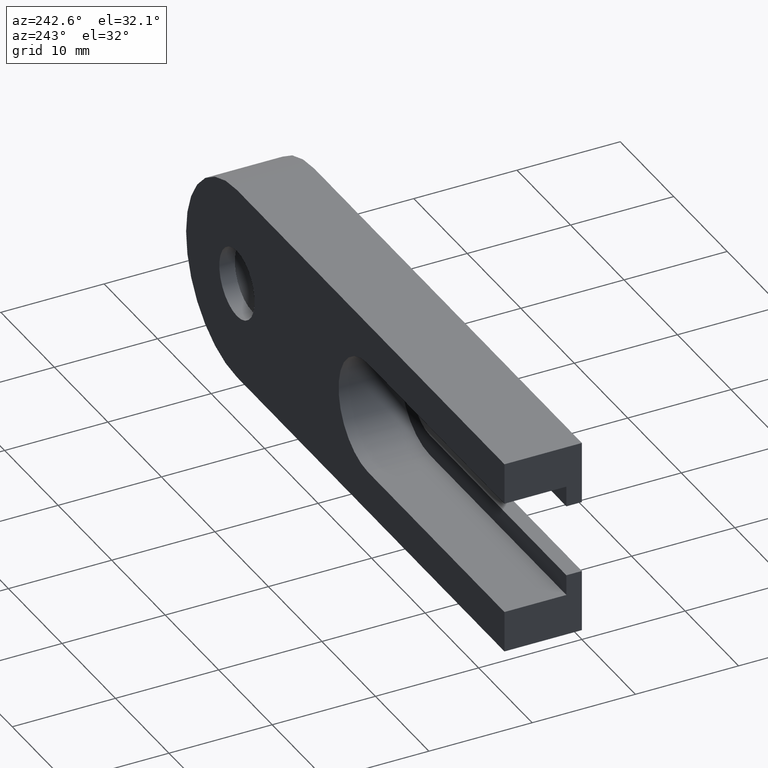
[diagram: clean part render]
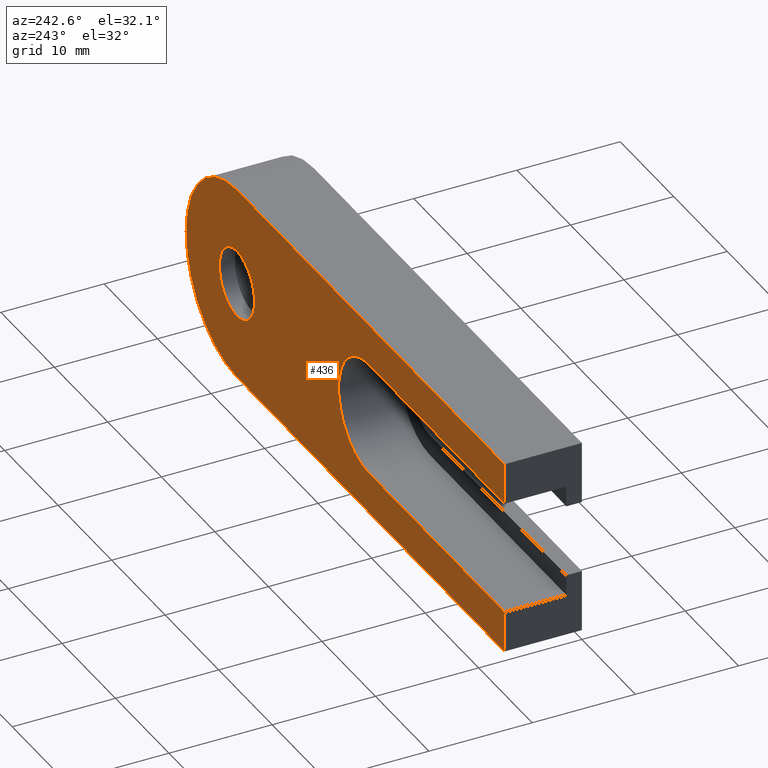
[diagram: same view with one face highlighted and labeled with its STEP entity id]
A machine part, auxiliary view. The second image highlights one B-rep face of the part: STEP entity #436.
In plain terms, the highlighted planar face has unit normal (0, 1, 0).
Its self-contained STEP definition (entity closure, byte-faithful):
#11 = DIRECTION ( 'NONE',  ( 0.0000000000000000000, -0.0000000000000000000, 1.000000000000000000 ) ) ;
#35 = CARTESIAN_POINT ( 'NONE',  ( 0.0000000000000000000, 7.500000000000000000, -9.500000000000000000 ) ) ;
#39 = CARTESIAN_POINT ( 'NONE',  ( -49.99999999999999300, 7.500000000000000000, -9.500000000000000000 ) ) ;
#44 = ORIENTED_EDGE ( 'NONE', *, *, #482, .T. ) ;
#46 = AXIS2_PLACEMENT_3D ( 'NONE', #83, #447, #654 ) ;
#48 = LINE ( 'NONE', #651, #589 ) ;
#57 = LINE ( 'NONE', #251, #547 ) ;
#67 = ORIENTED_EDGE ( 'NONE', *, *, #163, .F. ) ;
#71 = EDGE_CURVE ( 'NONE', #345, #138, #271, .T. ) ;
#82 = DIRECTION ( 'NONE',  ( 1.000000000000000000, 0.0000000000000000000, 0.0000000000000000000 ) ) ;
#83 = CARTESIAN_POINT ( 'NONE',  ( 0.0000000000000000000, 7.499999999999999100, 0.0000000000000000000 ) ) ;
#105 = CARTESIAN_POINT ( 'NONE',  ( 0.0000000000000000000, 7.500000000000000000, 0.0000000000000000000 ) ) ;
#108 = CIRCLE ( 'NONE', #343, 3.299999999999998500 ) ;
#115 = CARTESIAN_POINT ( 'NONE',  ( -49.99999999999999300, 7.500000000000000000, -9.500000000000000000 ) ) ;
#123 = CIRCLE ( 'NONE', #46, 3.299999999999998500 ) ;
#129 = AXIS2_PLACEMENT_3D ( 'NONE', #181, #586, #383 ) ;
#138 = VERTEX_POINT ( 'NONE', #332 ) ;
#148 = CARTESIAN_POINT ( 'NONE',  ( 4.041334437186264000E-016, 7.499999999999999100, 3.299999999999998500 ) ) ;
#160 = CARTESIAN_POINT ( 'NONE',  ( -24.49999999999999600, 7.500000000000000000, -5.500000000000000000 ) ) ;
#163 = EDGE_CURVE ( 'NONE', #469, #490, #540, .T. ) ;
#167 = DIRECTION ( 'NONE',  ( -0.0000000000000000000, -1.000000000000000000, -0.0000000000000000000 ) ) ;
#173 = ORIENTED_EDGE ( 'NONE', *, *, #525, .F. ) ;
#181 = CARTESIAN_POINT ( 'NONE',  ( -24.49999999999999600, 7.500000000000000000, 3.469446951953614200E-015 ) ) ;
#187 = VECTOR ( 'NONE', #541, 1000.000000000000000 ) ;
#188 = AXIS2_PLACEMENT_3D ( 'NONE', #247, #659, #448 ) ;
#191 = EDGE_CURVE ( 'NONE', #560, #619, #336, .T. ) ;
#194 = VECTOR ( 'NONE', #461, 1000.000000000000000 ) ;
#207 = ORIENTED_EDGE ( 'NONE', *, *, #587, .F. ) ;
#208 = CARTESIAN_POINT ( 'NONE',  ( -49.99999999999999300, 7.500000000000000000, 5.500000000000006200 ) ) ;
#210 = ORIENTED_EDGE ( 'NONE', *, *, #638, .T. ) ;
#221 = EDGE_LOOP ( 'NONE', ( #207, #67, #173, #283, #371, #496, #210, #408 ) ) ;
#230 = LINE ( 'NONE', #160, #293 ) ;
#247 = CARTESIAN_POINT ( 'NONE',  ( 0.0000000000000000000, 7.500000000000000000, 0.0000000000000000000 ) ) ;
#251 = CARTESIAN_POINT ( 'NONE',  ( -49.99999999999999300, 7.500000000000000000, 9.500000000000000000 ) ) ;
#257 = PLANE ( 'NONE',  #331 ) ;
#271 = LINE ( 'NONE', #115, #360 ) ;
#274 = VERTEX_POINT ( 'NONE', #148 ) ;
#283 = ORIENTED_EDGE ( 'NONE', *, *, #71, .T. ) ;
#293 = VECTOR ( 'NONE', #462, 1000.000000000000000 ) ;
#299 = CARTESIAN_POINT ( 'NONE',  ( -24.49999999999999600, 7.500000000000000000, -5.500000000000000000 ) ) ;
#305 = VERTEX_POINT ( 'NONE', #510 ) ;
#313 = DIRECTION ( 'NONE',  ( 0.0000000000000000000, 0.0000000000000000000, -1.000000000000000000 ) ) ;
#320 = DIRECTION ( 'NONE',  ( 0.0000000000000000000, 1.000000000000000000, 0.0000000000000000000 ) ) ;
#325 = CARTESIAN_POINT ( 'NONE',  ( 0.0000000000000000000, 7.499999999999999100, -3.299999999999998500 ) ) ;
#328 = DIRECTION ( 'NONE',  ( 0.0000000000000000000, 0.0000000000000000000, 1.000000000000000000 ) ) ;
#331 = AXIS2_PLACEMENT_3D ( 'NONE', #105, #320, #11 ) ;
#332 = CARTESIAN_POINT ( 'NONE',  ( -49.99999999999999300, 7.500000000000000000, 9.500000000000000000 ) ) ;
#336 = CIRCLE ( 'NONE', #188, 9.500000000000000000 ) ;
#342 = LINE ( 'NONE', #39, #187 ) ;
#343 = AXIS2_PLACEMENT_3D ( 'NONE', #368, #167, #313 ) ;
#345 = VERTEX_POINT ( 'NONE', #208 ) ;
#353 = DIRECTION ( 'NONE',  ( 1.000000000000000000, 0.0000000000000000000, 0.0000000000000000000 ) ) ;
#354 = EDGE_LOOP ( 'NONE', ( #44, #407 ) ) ;
#360 = VECTOR ( 'NONE', #328, 1000.000000000000000 ) ;
#368 = CARTESIAN_POINT ( 'NONE',  ( 0.0000000000000000000, 7.499999999999999100, 0.0000000000000000000 ) ) ;
#370 = EDGE_CURVE ( 'NONE', #274, #473, #108, .T. ) ;
#371 = ORIENTED_EDGE ( 'NONE', *, *, #527, .T. ) ;
#383 = DIRECTION ( 'NONE',  ( 0.0000000000000000000, 0.0000000000000000000, 1.000000000000000000 ) ) ;
#407 = ORIENTED_EDGE ( 'NONE', *, *, #370, .T. ) ;
#408 = ORIENTED_EDGE ( 'NONE', *, *, #493, .T. ) ;
#432 = VERTEX_POINT ( 'NONE', #464 ) ;
#436 = ADVANCED_FACE ( 'NONE', ( #471, #566 ), #257, .T. ) ;
#447 = DIRECTION ( 'NONE',  ( -0.0000000000000000000, -1.000000000000000000, -0.0000000000000000000 ) ) ;
#448 = DIRECTION ( 'NONE',  ( 0.0000000000000000000, 0.0000000000000000000, 1.000000000000000000 ) ) ;
#452 = CARTESIAN_POINT ( 'NONE',  ( 0.0000000000000000000, 7.500000000000000000, 9.500000000000000000 ) ) ;
#461 = DIRECTION ( 'NONE',  ( -1.000000000000000000, -0.0000000000000000000, -0.0000000000000000000 ) ) ;
#462 = DIRECTION ( 'NONE',  ( -1.000000000000000000, 0.0000000000000000000, 2.380993006242676300E-016 ) ) ;
#464 = CARTESIAN_POINT ( 'NONE',  ( -49.99999999999999300, 7.500000000000000000, -9.500000000000000000 ) ) ;
#469 = VERTEX_POINT ( 'NONE', #567 ) ;
#471 = FACE_OUTER_BOUND ( 'NONE', #221, .T. ) ;
#473 = VERTEX_POINT ( 'NONE', #325 ) ;
#482 = EDGE_CURVE ( 'NONE', #473, #274, #123, .T. ) ;
#490 = VERTEX_POINT ( 'NONE', #299 ) ;
#493 = EDGE_CURVE ( 'NONE', #432, #305, #342, .T. ) ;
#496 = ORIENTED_EDGE ( 'NONE', *, *, #191, .T. ) ;
#510 = CARTESIAN_POINT ( 'NONE',  ( -49.99999999999999300, 7.500000000000000000, -5.499999999999993800 ) ) ;
#525 = EDGE_CURVE ( 'NONE', #345, #469, #48, .T. ) ;
#527 = EDGE_CURVE ( 'NONE', #138, #560, #57, .T. ) ;
#540 = CIRCLE ( 'NONE', #129, 5.500000000000003600 ) ;
#541 = DIRECTION ( 'NONE',  ( 0.0000000000000000000, 0.0000000000000000000, 1.000000000000000000 ) ) ;
#547 = VECTOR ( 'NONE', #353, 1000.000000000000000 ) ;
#560 = VERTEX_POINT ( 'NONE', #452 ) ;
#566 = FACE_BOUND ( 'NONE', #354, .T. ) ;
#567 = CARTESIAN_POINT ( 'NONE',  ( -24.49999999999999600, 7.500000000000000000, 5.500000000000006200 ) ) ;
#586 = DIRECTION ( 'NONE',  ( 0.0000000000000000000, 1.000000000000000000, 0.0000000000000000000 ) ) ;
#587 = EDGE_CURVE ( 'NONE', #490, #305, #230, .T. ) ;
#589 = VECTOR ( 'NONE', #82, 1000.000000000000000 ) ;
#602 = CARTESIAN_POINT ( 'NONE',  ( -49.99999999999999300, 7.500000000000000000, -9.500000000000000000 ) ) ;
#619 = VERTEX_POINT ( 'NONE', #35 ) ;
#638 = EDGE_CURVE ( 'NONE', #619, #432, #645, .T. ) ;
#645 = LINE ( 'NONE', #602, #194 ) ;
#651 = CARTESIAN_POINT ( 'NONE',  ( -49.99999999999999300, 7.500000000000000000, 5.500000000000006200 ) ) ;
#654 = DIRECTION ( 'NONE',  ( 0.0000000000000000000, 0.0000000000000000000, -1.000000000000000000 ) ) ;
#659 = DIRECTION ( 'NONE',  ( 0.0000000000000000000, 1.000000000000000000, 0.0000000000000000000 ) ) ;